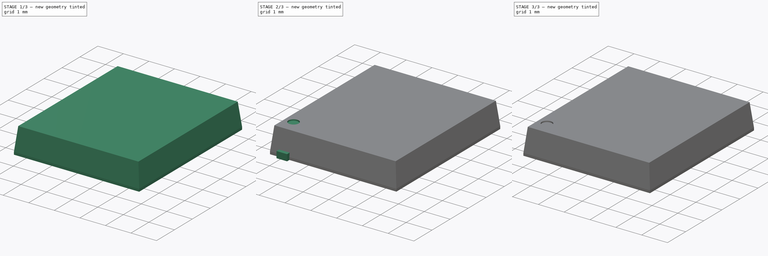
[diagram: build sequence overview — one tinted view per stage of 3, left to right]
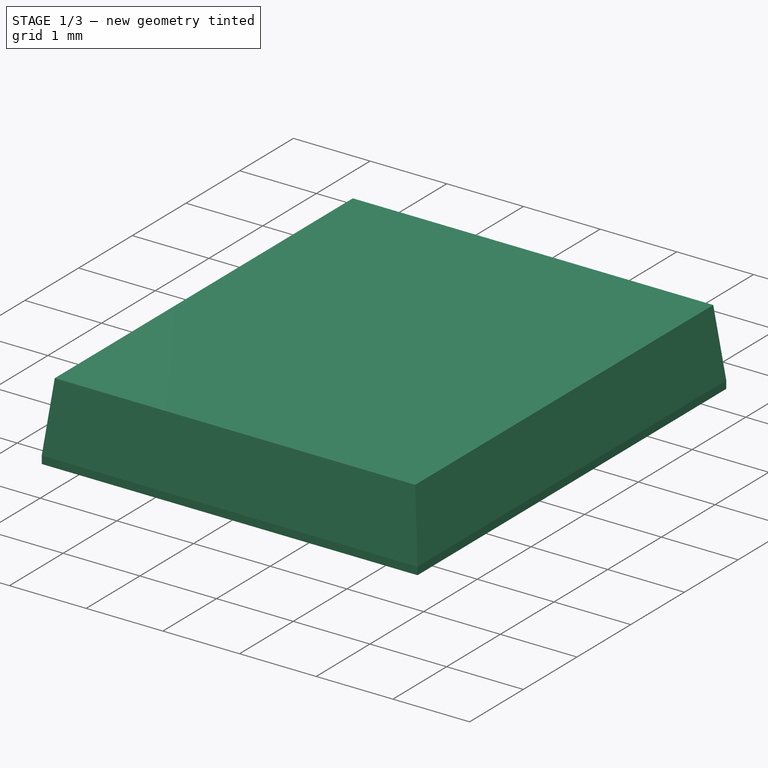
[diagram: stage 1 of 3 — iso view after this stage's code; geometry added in this stage tinted green]
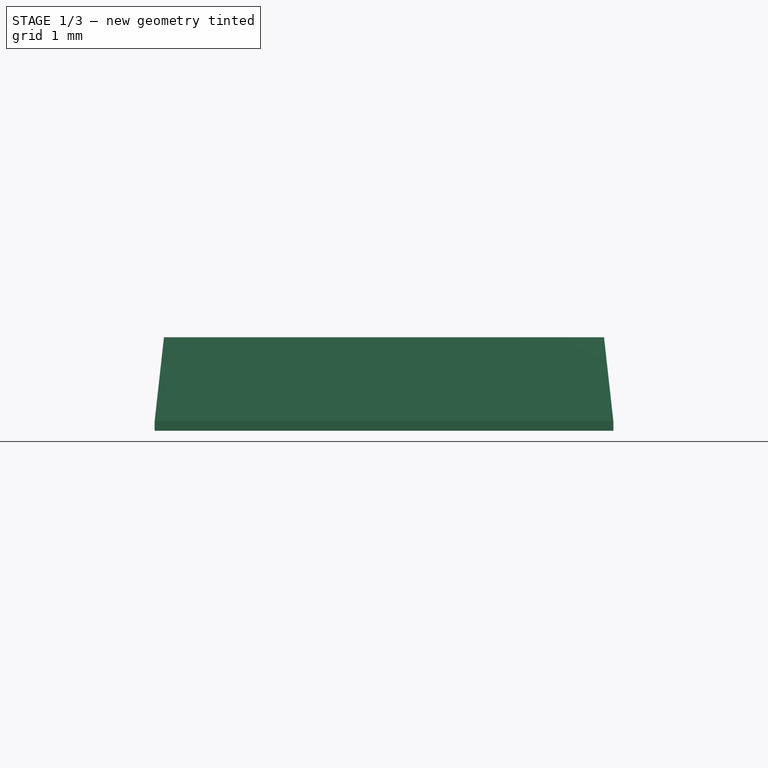
[diagram: stage 1 of 3 — front view after this stage's code; geometry added in this stage tinted green]
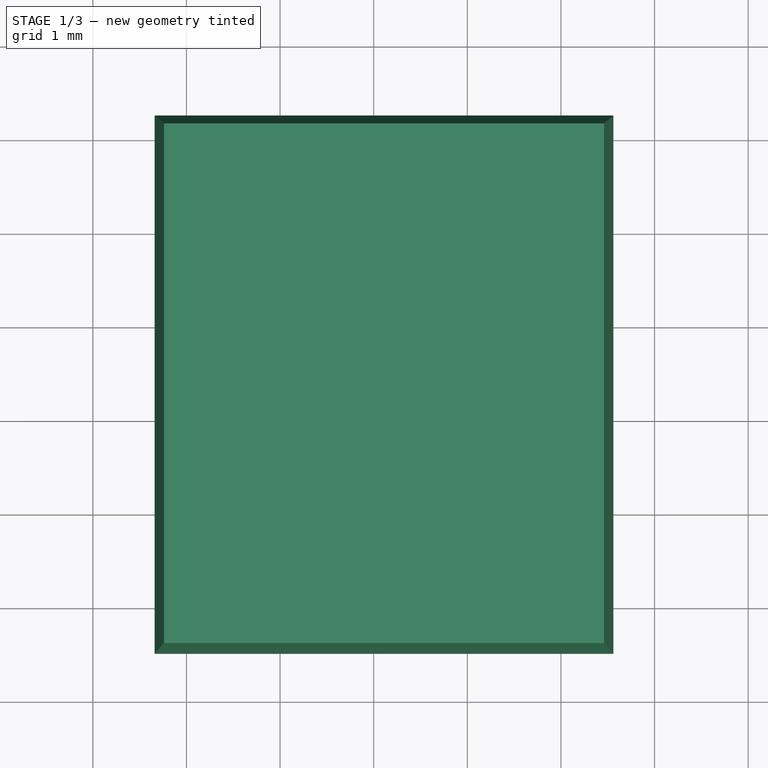
[diagram: stage 1 of 3 — top view after this stage's code; geometry added in this stage tinted green]
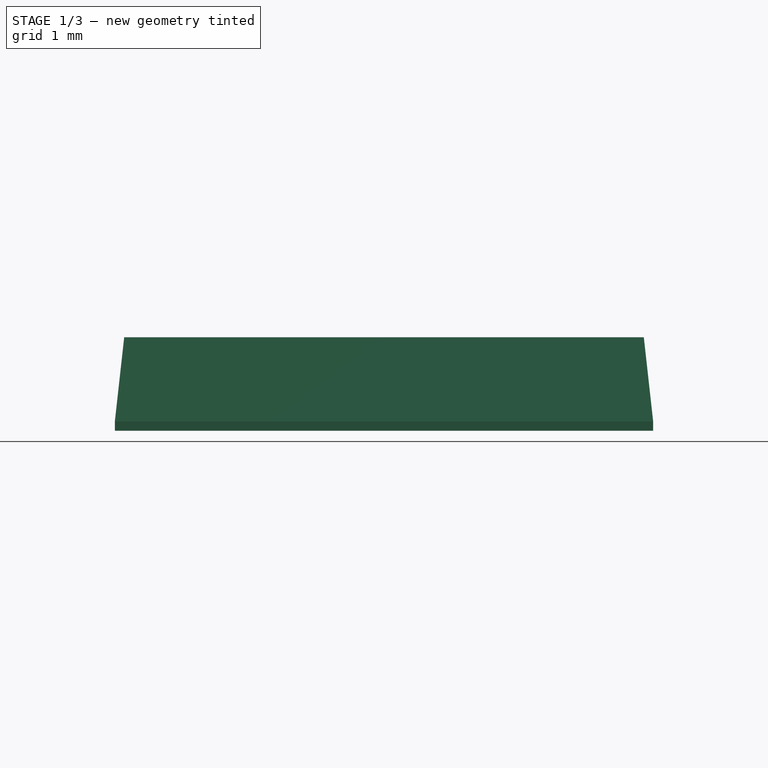
[diagram: stage 1 of 3 — right view after this stage's code; geometry added in this stage tinted green]
FCSTD DOCUMENT  (FreeCAD 0.17R13541 (Git))
Label: AB2_son
License: All rights reserved
LicenseURL: http://en.wikipedia.org/wiki/All_rights_reserved
objects: Sketcher::SketchObject×3, PartDesign::Pad×2, Part::FeaturePython×1, Part::Mirroring×1, Part::Chamfer×1, PartDesign::Pocket×1
note: 12 computed .brp shape members not serialized (recipe doc carries the construction recipe); baked Part::Feature solids carry a one-line shape summary decoded from their .brp

FEATURE [Sketcher::SketchObject] Sketch001
  MapMode = 5
  sketch-geometry (4):
    g0: LineSegment StartX=-0.34 StartY=-0.485 StartZ=0 EndX=4.56 EndY=-0.485 EndZ=0
    g1: LineSegment StartX=4.56 StartY=-0.485 StartZ=0 EndX=4.56 EndY=5.265 EndZ=0
    g2: LineSegment StartX=4.56 StartY=5.265 StartZ=0 EndX=-0.34 EndY=5.265 EndZ=0
    g3: LineSegment StartX=-0.34 StartY=5.265 StartZ=0 EndX=-0.34 EndY=-0.485 EndZ=0
  constraints (12):
    c: Coincident(g0,g1)
    c: Coincident(g1,g2)
    c: Coincident(g2,g3)
    c: Coincident(g3,g0)
    c: Horizontal(g0)
    c: Horizontal(g2)
    c: Vertical(g1)
    c: Vertical(g3)
    c: Distance(g2) = 4.9
    c: Distance(g3) = 5.75
    c: DistanceY(g0,g-1) = 0.485
    c: DistanceX(g0,g-1) = 0.34
FEATURE [PartDesign::Pad] Pad001
  Length = 1
  Length2 = 100
  Profile = -> Sketch001
  Type = 0
FEATURE [Part::Chamfer] Chamfer
  Base = -> Pad001
  Edges = 4 edges: [Edge4 r1=0.9 r2=0.1,Edge7 r1=0.9 r2=0.1,Edge10 r1=0.9 r2=0.1,Edge12 r1=0.9 r2=0.1]
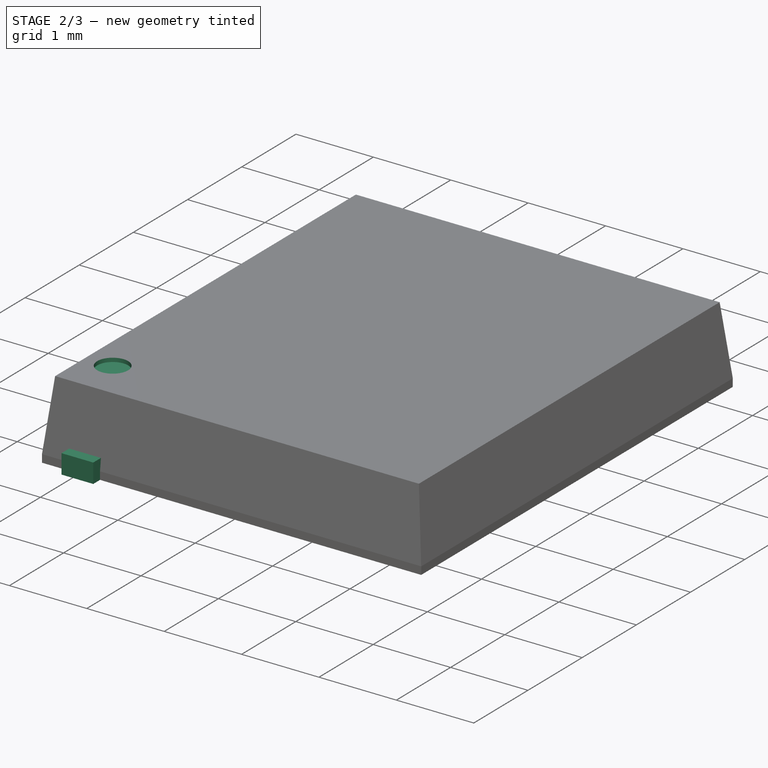
[diagram: stage 2 of 3 — iso view after this stage's code; geometry added in this stage tinted green]
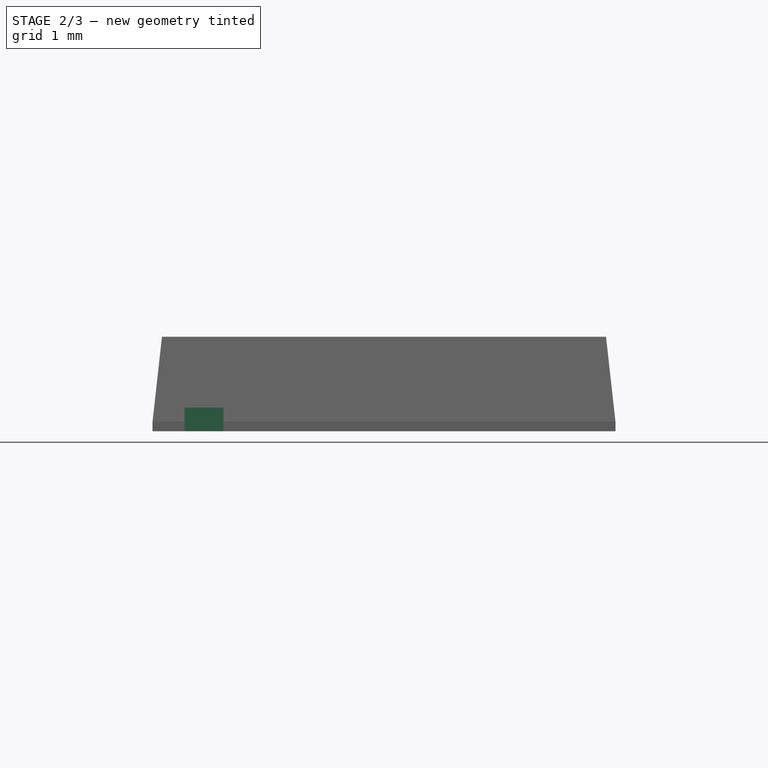
[diagram: stage 2 of 3 — front view after this stage's code; geometry added in this stage tinted green]
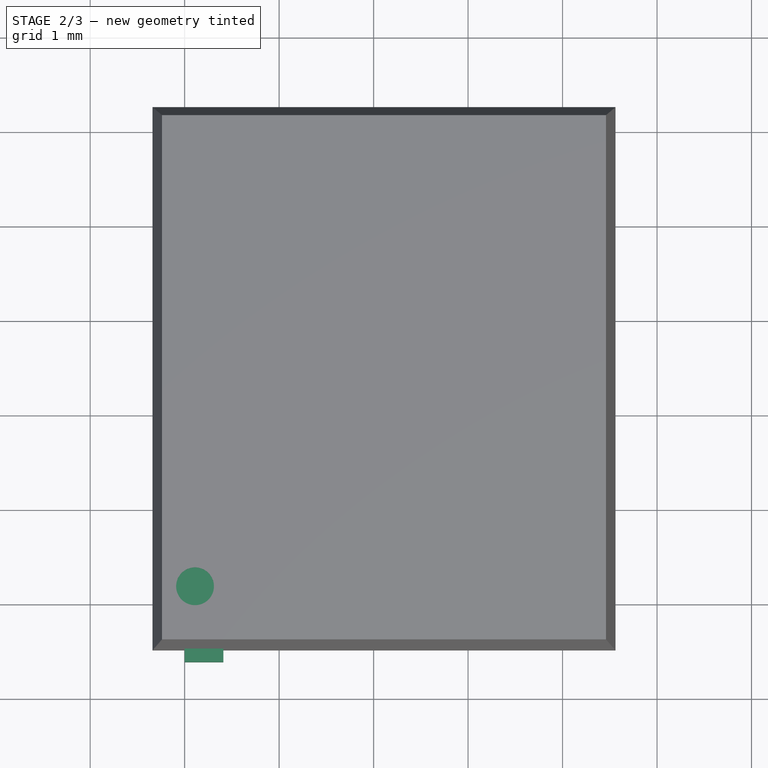
[diagram: stage 2 of 3 — top view after this stage's code; geometry added in this stage tinted green]
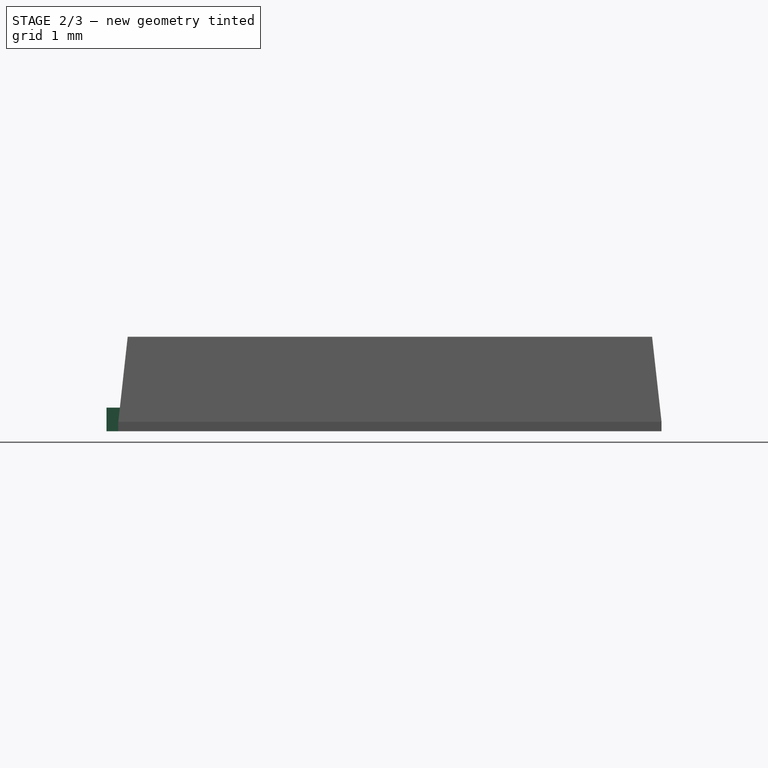
[diagram: stage 2 of 3 — right view after this stage's code; geometry added in this stage tinted green]
FEATURE [Sketcher::SketchObject] Sketch
  MapMode = 5
  Placement = pos=(0,0,0) rot=(0.57735,0.57735,0.57735;2.0944rad)
  sketch-geometry (4):
    g0: LineSegment StartX=-0.61 StartY=0.25 StartZ=0 EndX=0 EndY=0.25 EndZ=0
    g1: LineSegment StartX=0 StartY=0.25 StartZ=0 EndX=0 EndY=0 EndZ=0
    g2: LineSegment StartX=0 StartY=0 StartZ=0 EndX=-0.61 EndY=0 EndZ=0
    g3: LineSegment StartX=-0.61 StartY=0 StartZ=0 EndX=-0.61 EndY=0.25 EndZ=0
  constraints (11):
    c: Coincident(g0,g1)
    c: Coincident(g1,g2)
    c: Coincident(g2,g3)
    c: Coincident(g3,g0)
    c: Horizontal(g0)
    c: Horizontal(g2)
    c: Vertical(g1)
    c: Vertical(g3)
    c: Coincident(g1,g-1)
    c: Distance(g0) = 0.61
    c: Distance(g3) = 0.25
FEATURE [PartDesign::Pad] Pad
  Length = 0.41
  Length2 = 100
  Placement = pos=(0,0,0) rot=(0.57735,0.57735,0.57735;2.0944rad)
  Profile = -> Sketch
  Type = 0
FEATURE [Sketcher::SketchObject] Sketch002
  ExternalGeometry = -> [Chamfer]
  MapMode = 5
  Placement = pos=(0,0,1) rot=(0,0,1;0rad)
  Support = -> [Chamfer]
  sketch-geometry (1):
    g0: Circle CenterX=0.11 CenterY=-0.035 CenterZ=0 NormalX=0 NormalY=0 NormalZ=1 AngleXU=0 Radius=0.2
  constraints (4):
    c: Radius(g0) = 0.2
    c: DistanceX(g-4,g0) = 0.35
    c: DistanceX(g-4,g0) = 0.35
    c: DistanceY(g-4,g0) = 0.35
FEATURE [PartDesign::Pocket] Pocket
  Length = 0.05
  Length2 = 100
  Profile = -> Sketch002
  Type = 0
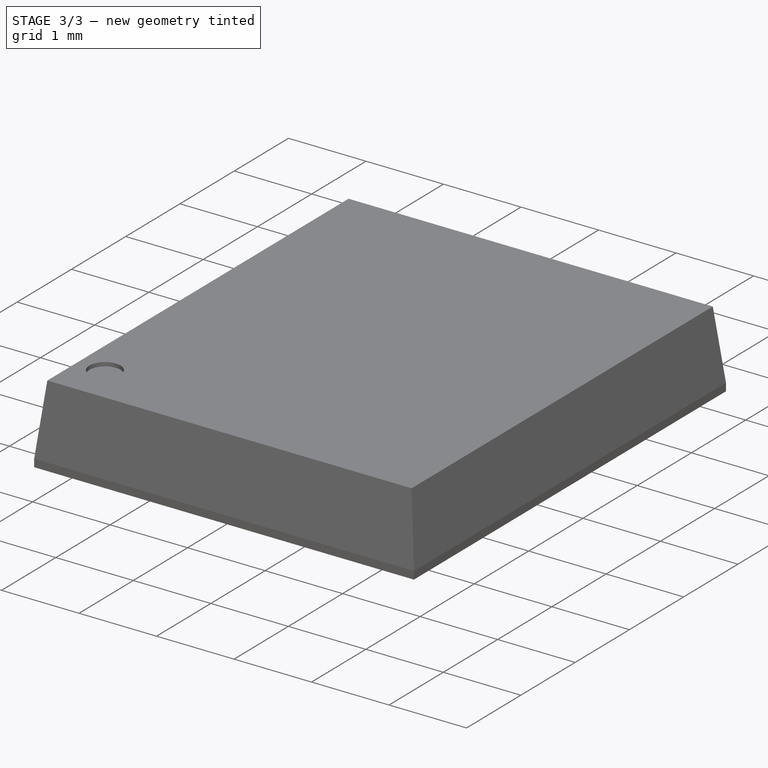
[diagram: stage 3 of 3 — iso view after this stage's code; geometry added in this stage tinted green]
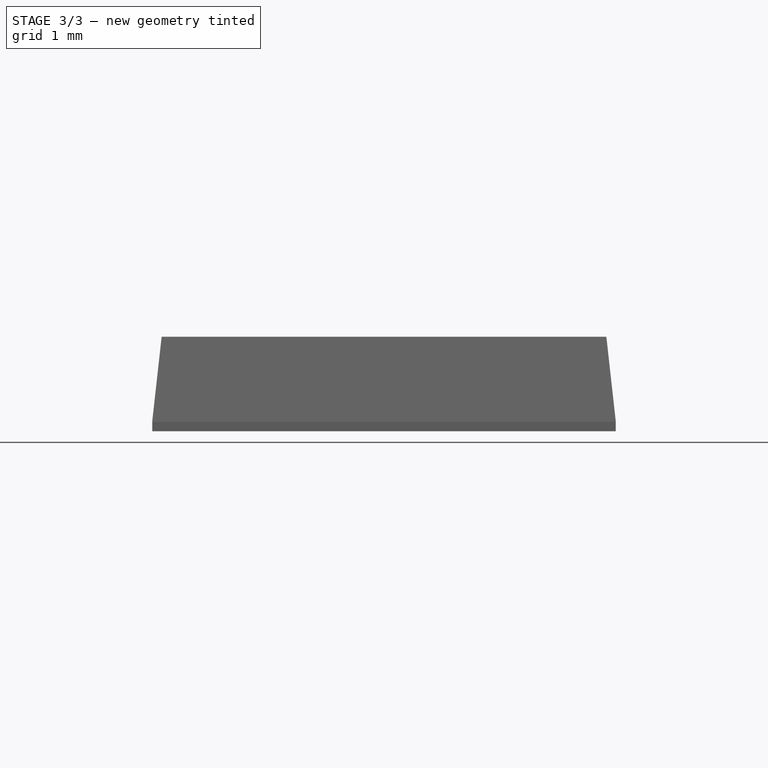
[diagram: stage 3 of 3 — front view after this stage's code; geometry added in this stage tinted green]
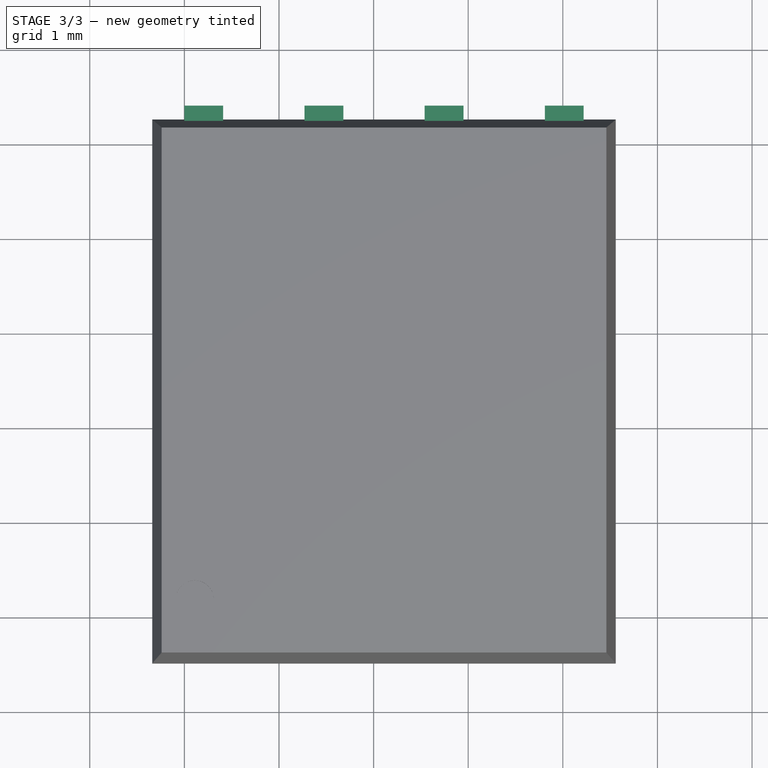
[diagram: stage 3 of 3 — top view after this stage's code; geometry added in this stage tinted green]
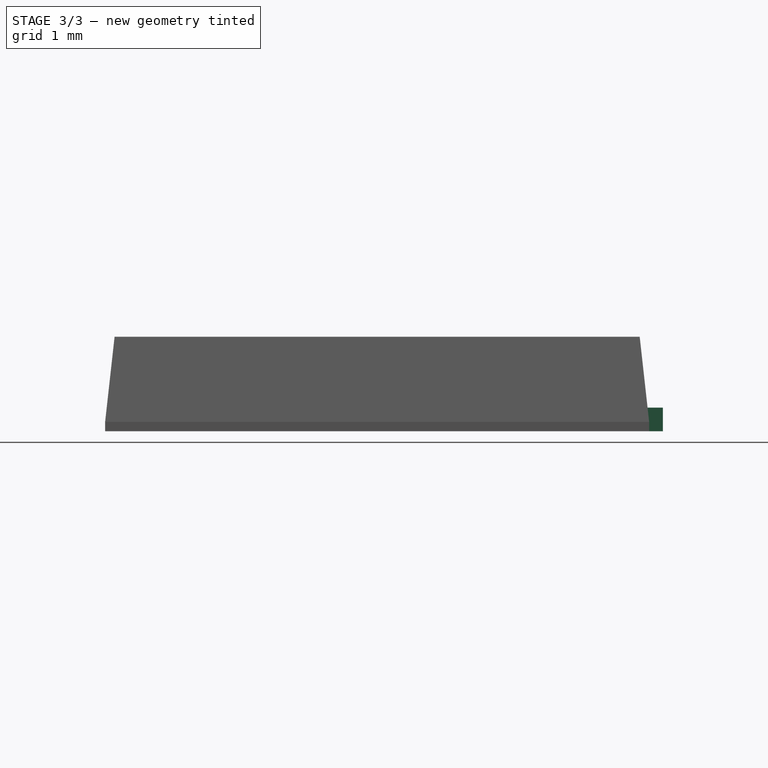
[diagram: stage 3 of 3 — right view after this stage's code; geometry added in this stage tinted green]
FEATURE [Part::FeaturePython] Array  # Draft array (typed FeaturePython)
  Angle = 360
  ArrayType = 0
  Axis = (0,0,1)
  Base = -> Pad
  Center = (0,0,0)
  Fuse = false
  IntervalAxis = (0,0,0)
  IntervalX = (1.27,0,0)
  IntervalY = (0,1,0)
  IntervalZ = (0,0,0)
  NumberPolar = 1
  NumberX = 4
  NumberY = 1
  NumberZ = 1
FEATURE [Part::Mirroring] Part__Mirroring  label="Array (Mirror #1)"
  Base = (0,0,0)
  Normal = (0,1,0)
  Placement = pos=(0,4.8,0) rot=(0,0,1;0rad)
  Source = -> Array
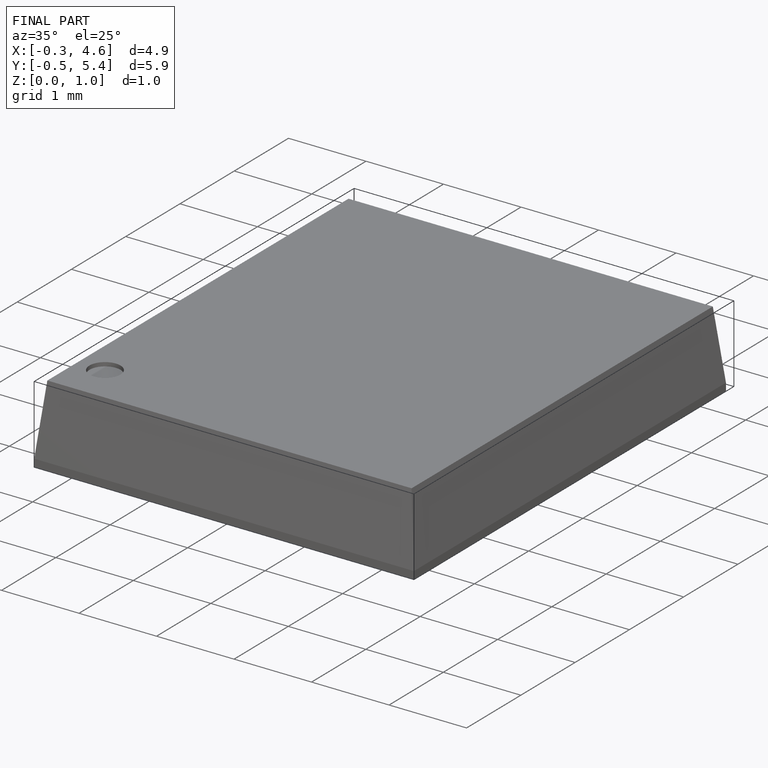
[diagram: finished part — iso view with bounding-box wireframe]
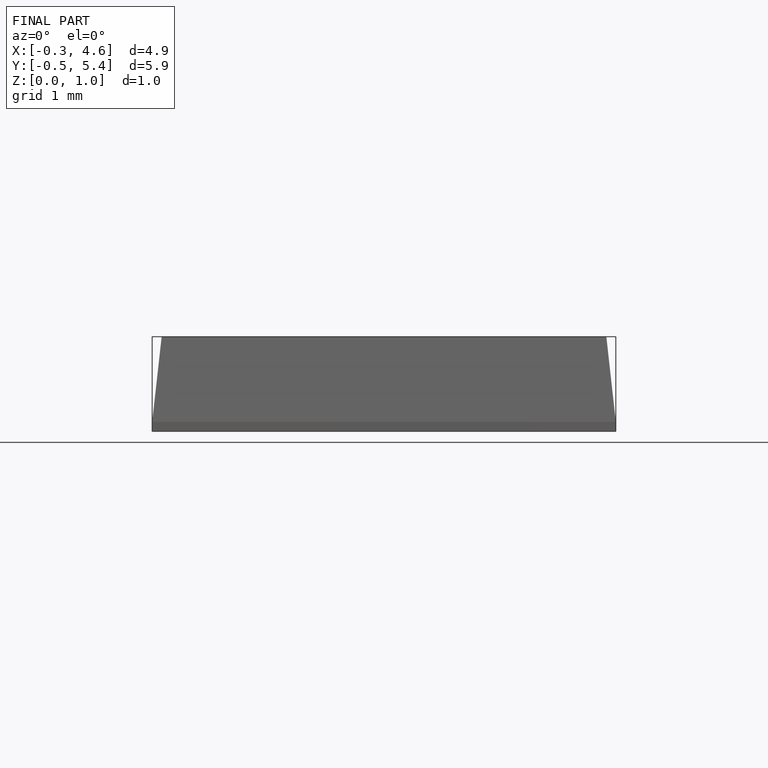
[diagram: finished part — front view with bounding-box wireframe]
